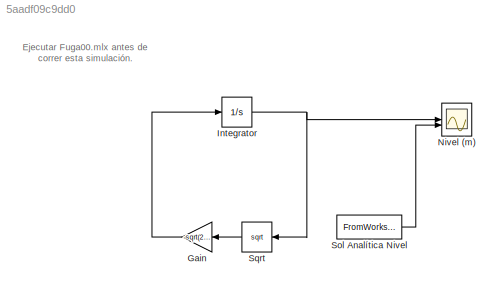
MODEL slx_5aadf09c9dd0
KIND model
CONFIG AbsTol = auto
CONFIG EnableMultiTasking = off
CONFIG FixedStep = auto
CONFIG MaxStep = auto
CONFIG MinStep = auto
CONFIG RelTol = 1e-3
CONFIG SampleTimeConstraint = Unconstrained
CONFIG SolverName = VariableStepAuto
CONFIG StartTime = 0.0
CONFIG StopTime = 3600*tf
BLOCK [Gain] Gain
  Gain = -sqrt(2*9.81)*(Dsm/DT)^2
BLOCK [Integrator] Integrator
  InitialCondition = h0
BLOCK [Scope] Nivel (m)
  Floating = off
  NumInputPorts = 2
  ScopeSpecificationString = Simulink.scopes.TimeScopeBlockCfg('CurrentConfiguration', extmgr.ConfigurationSet(extmgr.Configuration('Core','General UI',true),extmgr.Configuration('Core','Source UI',true),extmgr.Configuration('Sources','WiredSimulink',true),extmgr.Configuration('Visuals','Time Domain',true,'SerializedDisplays',{struct('MinYLimReal','-0.28076','MaxYLimReal','2.5312','YLabelReal','','MinYLimMag','0.00000','MaxYL...<+1744ch>
BLOCK [FromWorkspace] Sol Analítica Nivel
  VariableName = siminh
BLOCK [Sqrt] Sqrt
ANNOTATION (root): Ejecutar Fuga00.mlx antes de correr esta simulación.
LINE Gain:1 -> Integrator:1
NET Integrator:1 -> Nivel (m):1, Sqrt:1
LINE Sol Analítica Nivel:1 -> Nivel (m):2
LINE Sqrt:1 -> Gain:1
note: NET lines group one-source signal fan-out (src -> all destinations, sorted); 1:1 wires keep LINE
